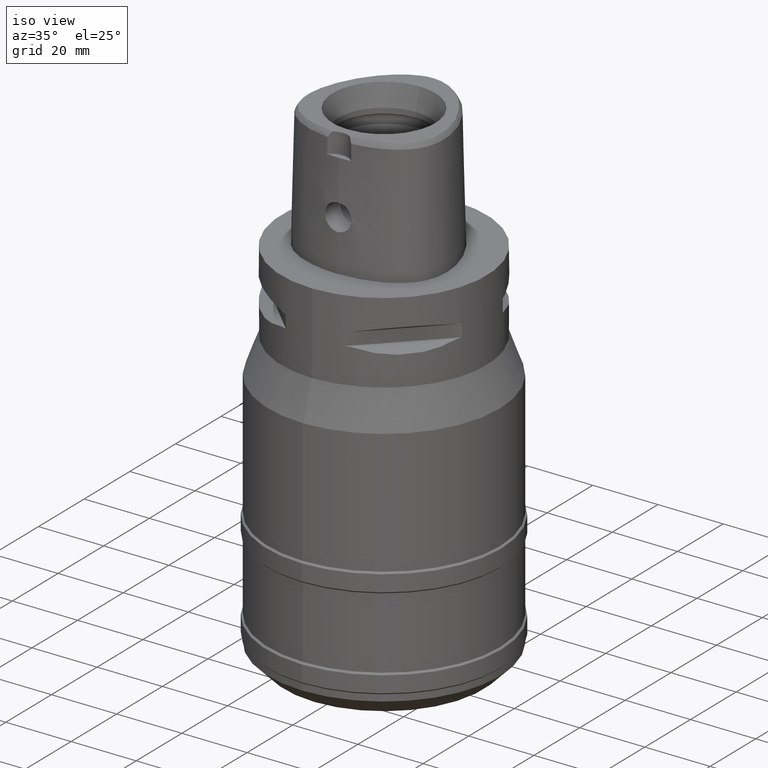
[diagram: clean part render]
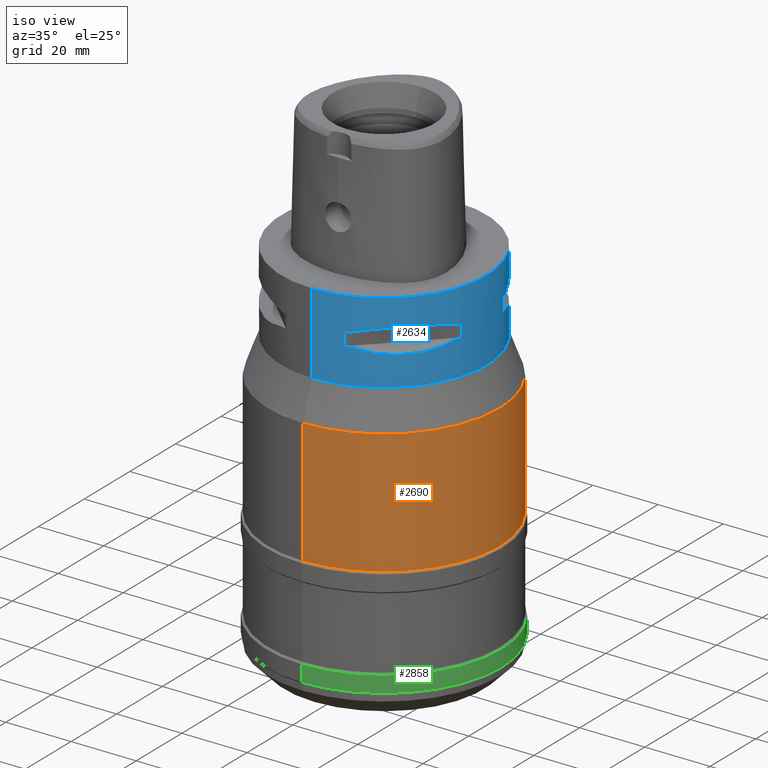
[diagram: same view with three faces highlighted in distinct colors, each labeled with its STEP entity id]
A machine part, iso view with three faces highlighted in distinct colors.
Their STEP definitions:

[orange] entity #2690 — the highlighted cylindrical surface (partial cylindrical patch) has radius 35.5 mm, axis along (0, 0, -1).
#549=CARTESIAN_POINT('',(0.E0,0.E0,-3.581390967782E1));
#550=DIRECTION('',(0.E0,0.E0,-1.E0));
#551=DIRECTION('',(0.E0,1.E0,0.E0));
#552=AXIS2_PLACEMENT_3D('',#549,#550,#551);
#588=DIRECTION('',(0.E0,0.E0,-1.E0));
#589=VECTOR('',#588,3.818609032218E1);
#590=CARTESIAN_POINT('',(0.E0,-3.55E1,-3.581390967782E1));
#591=LINE('',#590,#589);
#595=DIRECTION('',(0.E0,0.E0,-1.E0));
#596=VECTOR('',#595,3.818609032218E1);
#597=CARTESIAN_POINT('',(0.E0,3.55E1,-3.581390967782E1));
#598=LINE('',#597,#596);
#617=CARTESIAN_POINT('',(0.E0,0.E0,-7.4E1));
#618=DIRECTION('',(0.E0,0.E0,1.E0));
#619=DIRECTION('',(0.E0,-1.E0,0.E0));
#620=AXIS2_PLACEMENT_3D('',#617,#618,#619);
#1740=CARTESIAN_POINT('',(0.E0,3.55E1,-3.581390967782E1));
#1741=VERTEX_POINT('',#1740);
#1742=CARTESIAN_POINT('',(0.E0,-3.55E1,-3.581390967782E1));
#1743=VERTEX_POINT('',#1742);
#1744=CARTESIAN_POINT('',(0.E0,3.55E1,-7.4E1));
#1745=VERTEX_POINT('',#1744);
#1746=CARTESIAN_POINT('',(0.E0,-3.55E1,-7.4E1));
#1747=VERTEX_POINT('',#1746);
#2678=CARTESIAN_POINT('',(0.E0,1.295063990098E-14,5.75E0));
#2679=DIRECTION('',(0.E0,0.E0,-1.E0));
#2680=DIRECTION('',(0.E0,-1.E0,0.E0));
#2681=AXIS2_PLACEMENT_3D('',#2678,#2679,#2680);
#2682=CYLINDRICAL_SURFACE('',#2681,3.55E1);
#2683=ORIENTED_EDGE('',*,*,#2668,.T.);
#2685=ORIENTED_EDGE('',*,*,#2684,.F.);
#2686=ORIENTED_EDGE('',*,*,#2671,.F.);
#2687=ORIENTED_EDGE('',*,*,#2642,.F.);
#2688=EDGE_LOOP('',(#2683,#2685,#2686,#2687));
#2689=FACE_OUTER_BOUND('',#2688,.F.);
#553=CIRCLE('',#552,3.55E1);
#621=CIRCLE('',#620,3.55E1);
#2642=EDGE_CURVE('',#1741,#1743,#553,.T.);
#2668=EDGE_CURVE('',#1741,#1745,#598,.T.);
#2671=EDGE_CURVE('',#1743,#1747,#591,.T.);
#2684=EDGE_CURVE('',#1747,#1745,#621,.T.);
#2690=ADVANCED_FACE('',(#2689),#2682,.T.);

[blue] entity #2634 — the highlighted cylindrical surface (partial cylindrical patch) has radius 31.5 mm, axis along (0, 0, -1).
#292=CARTESIAN_POINT('',(0.E0,1.295063990098E-14,0.E0));
#293=DIRECTION('',(0.E0,0.E0,-1.E0));
#294=DIRECTION('',(0.E0,1.E0,0.E0));
#295=AXIS2_PLACEMENT_3D('',#292,#293,#294);
#384=DIRECTION('',(0.E0,0.E0,-1.E0));
#385=VECTOR('',#384,2.4824E1);
#386=CARTESIAN_POINT('',(0.E0,-3.15E1,0.E0));
#387=LINE('',#386,#385);
#463=DIRECTION('',(0.E0,0.E0,-1.E0));
#464=VECTOR('',#463,2.4824E1);
#465=CARTESIAN_POINT('',(0.E0,3.15E1,0.E0));
#466=LINE('',#465,#464);
#470=CARTESIAN_POINT('',(2.971690375018E1,-1.044775724750E1,-9.949999999999E0));
#471=CARTESIAN_POINT('',(2.888151197365E1,-1.282388988809E1,-9.320995176198E0));
#472=CARTESIAN_POINT('',(2.674739463903E1,-1.711282138769E1,-8.441295977074E0));
#473=CARTESIAN_POINT('',(2.244574140438E1,-2.244574140438E1,-8.020283076294E0));
#474=CARTESIAN_POINT('',(1.711282138769E1,-2.674739463903E1,-8.441295977074E0));
#475=CARTESIAN_POINT('',(1.282388988809E1,-2.888151197365E1,-9.320995176198E0));
#476=CARTESIAN_POINT('',(1.044775724750E1,-2.971690375018E1,-9.949999999999E0));
#481=DIRECTION('',(0.E0,0.E0,-1.E0));
#482=VECTOR('',#481,4.1E0);
#483=CARTESIAN_POINT('',(8.981198972018E0,-3.019251670572E1,-9.95E0));
#484=LINE('',#483,#482);
#488=CARTESIAN_POINT('',(1.044775724750E1,-2.971690375018E1,-1.405E1));
#489=CARTESIAN_POINT('',(1.282388988809E1,-2.888151197365E1,-1.467900482380E1));
#490=CARTESIAN_POINT('',(1.711282138769E1,-2.674739463903E1,-1.555870402292E1));
#491=CARTESIAN_POINT('',(2.244574140438E1,-2.244574140438E1,-1.597971692370E1));
#492=CARTESIAN_POINT('',(2.674739463903E1,-1.711282138769E1,-1.555870402292E1));
#493=CARTESIAN_POINT('',(2.888151197365E1,-1.282388988809E1,-1.467900482380E1));
#494=CARTESIAN_POINT('',(2.971690375018E1,-1.044775724750E1,-1.405E1));
#499=DIRECTION('',(0.E0,0.E0,1.E0));
#500=VECTOR('',#499,4.1E0);
#501=CARTESIAN_POINT('',(3.019251670572E1,-8.981198972018E0,-1.405E1));
#502=LINE('',#501,#500);
#506=CARTESIAN_POINT('',(1.044775724750E1,2.971690375018E1,-9.949999999999E0));
#507=CARTESIAN_POINT('',(1.282388988809E1,2.888151197365E1,-9.320995176198E0));
#508=CARTESIAN_POINT('',(1.711282138769E1,2.674739463903E1,-8.441295977074E0));
#509=CARTESIAN_POINT('',(2.244574140438E1,2.244574140438E1,-8.020283076294E0));
#510=CARTESIAN_POINT('',(2.674739463903E1,1.711282138769E1,-8.441295977074E0));
#511=CARTESIAN_POINT('',(2.888151197365E1,1.282388988809E1,-9.320995176198E0));
#512=CARTESIAN_POINT('',(2.971690375018E1,1.044775724750E1,-9.949999999999E0));
#517=DIRECTION('',(0.E0,0.E0,-1.E0));
#518=VECTOR('',#517,4.1E0);
#519=CARTESIAN_POINT('',(3.019251670572E1,8.981198972018E0,-9.95E0));
#520=LINE('',#519,#518);
#524=CARTESIAN_POINT('',(2.971690375018E1,1.044775724750E1,-1.405E1));
#525=CARTESIAN_POINT('',(2.888151197365E1,1.282388988809E1,-1.467900482380E1));
#526=CARTESIAN_POINT('',(2.674739463903E1,1.711282138769E1,-1.555870402292E1));
#527=CARTESIAN_POINT('',(2.244574140438E1,2.244574140438E1,-1.597971692370E1));
#528=CARTESIAN_POINT('',(1.711282138769E1,2.674739463903E1,-1.555870402292E1));
#529=CARTESIAN_POINT('',(1.282388988809E1,2.888151197365E1,-1.467900482380E1));
#530=CARTESIAN_POINT('',(1.044775724750E1,2.971690375018E1,-1.405E1));
#535=DIRECTION('',(0.E0,0.E0,1.E0));
#536=VECTOR('',#535,4.1E0);
#537=CARTESIAN_POINT('',(8.981198972018E0,3.019251670572E1,-1.405E1));
#538=LINE('',#537,#536);
#557=CARTESIAN_POINT('',(0.E0,0.E0,-2.4824E1));
#558=DIRECTION('',(0.E0,0.E0,1.E0));
#559=DIRECTION('',(0.E0,-1.E0,0.E0));
#560=AXIS2_PLACEMENT_3D('',#557,#558,#559);
#1414=CARTESIAN_POINT('',(0.E0,1.295063990098E-14,-9.95E0));
#1415=DIRECTION('',(0.E0,0.E0,1.E0));
#1416=DIRECTION('',(9.433937698469E-1,-3.316748332541E-1,0.E0));
#1417=AXIS2_PLACEMENT_3D('',#1414,#1415,#1416);
#1422=CARTESIAN_POINT('',(0.E0,1.295063990098E-14,-9.95E0));
#1423=DIRECTION('',(0.E0,0.E0,1.E0));
#1424=DIRECTION('',(2.851174276832E-1,-9.584925938323E-1,0.E0));
#1425=AXIS2_PLACEMENT_3D('',#1422,#1423,#1424);
#1444=CARTESIAN_POINT('',(0.E0,1.295063990098E-14,-1.405E1));
#1445=DIRECTION('',(0.E0,0.E0,-1.E0));
#1446=DIRECTION('',(9.584925938323E-1,-2.851174276832E-1,0.E0));
#1447=AXIS2_PLACEMENT_3D('',#1444,#1445,#1446);
#1452=CARTESIAN_POINT('',(0.E0,1.295063990098E-14,-1.405E1));
#1453=DIRECTION('',(0.E0,0.E0,-1.E0));
#1454=DIRECTION('',(3.316748332541E-1,-9.433937698469E-1,0.E0));
#1455=AXIS2_PLACEMENT_3D('',#1452,#1453,#1454);
#1474=CARTESIAN_POINT('',(0.E0,1.295063990098E-14,-9.95E0));
#1475=DIRECTION('',(0.E0,0.E0,1.E0));
#1476=DIRECTION('',(3.316748332541E-1,9.433937698469E-1,0.E0));
#1477=AXIS2_PLACEMENT_3D('',#1474,#1475,#1476);
#1482=CARTESIAN_POINT('',(0.E0,1.295063990098E-14,-9.95E0));
#1483=DIRECTION('',(0.E0,0.E0,1.E0));
#1484=DIRECTION('',(9.584925938323E-1,2.851174276832E-1,0.E0));
#1485=AXIS2_PLACEMENT_3D('',#1482,#1483,#1484);
#1504=CARTESIAN_POINT('',(0.E0,1.295063990098E-14,-1.405E1));
#1505=DIRECTION('',(0.E0,0.E0,-1.E0));
#1506=DIRECTION('',(2.851174276832E-1,9.584925938323E-1,0.E0));
#1507=AXIS2_PLACEMENT_3D('',#1504,#1505,#1506);
#1512=CARTESIAN_POINT('',(0.E0,1.295063990098E-14,-1.405E1));
#1513=DIRECTION('',(0.E0,0.E0,-1.E0));
#1514=DIRECTION('',(9.433937698469E-1,3.316748332541E-1,0.E0));
#1515=AXIS2_PLACEMENT_3D('',#1512,#1513,#1514);
#1680=CARTESIAN_POINT('',(0.E0,-3.15E1,0.E0));
#1681=CARTESIAN_POINT('',(0.E0,3.15E1,0.E0));
#1682=VERTEX_POINT('',#1680);
#1683=VERTEX_POINT('',#1681);
#1684=CARTESIAN_POINT('',(0.E0,3.15E1,-2.4824E1));
#1685=VERTEX_POINT('',#1684);
#1686=CARTESIAN_POINT('',(0.E0,-3.15E1,-2.4824E1));
#1687=VERTEX_POINT('',#1686);
#1714=VERTEX_POINT('',#470);
#1715=VERTEX_POINT('',#476);
#1716=CARTESIAN_POINT('',(8.981198972020E0,-3.019251670572E1,-9.95E0));
#1717=VERTEX_POINT('',#1716);
#1718=CARTESIAN_POINT('',(8.981198972018E0,-3.019251670572E1,-1.405E1));
#1719=VERTEX_POINT('',#1718);
#1720=CARTESIAN_POINT('',(1.044775724750E1,-2.971690375018E1,-1.405E1));
#1721=VERTEX_POINT('',#1720);
#1722=VERTEX_POINT('',#494);
#1723=CARTESIAN_POINT('',(3.019251670572E1,-8.981198972020E0,-1.405E1));
#1724=VERTEX_POINT('',#1723);
#1725=CARTESIAN_POINT('',(3.019251670572E1,-8.981198972018E0,-9.95E0));
#1726=VERTEX_POINT('',#1725);
#1727=VERTEX_POINT('',#506);
#1728=VERTEX_POINT('',#512);
#1729=CARTESIAN_POINT('',(3.019251670572E1,8.981198972020E0,-9.95E0));
#1730=VERTEX_POINT('',#1729);
#1731=CARTESIAN_POINT('',(3.019251670572E1,8.981198972018E0,-1.405E1));
#1732=VERTEX_POINT('',#1731);
#1733=CARTESIAN_POINT('',(2.971690375018E1,1.044775724750E1,-1.405E1));
#1734=VERTEX_POINT('',#1733);
#1735=VERTEX_POINT('',#530);
#1736=CARTESIAN_POINT('',(8.981198972020E0,3.019251670572E1,-1.405E1));
#1737=VERTEX_POINT('',#1736);
#1738=CARTESIAN_POINT('',(8.981198972018E0,3.019251670572E1,-9.95E0));
#1739=VERTEX_POINT('',#1738);
#2586=CARTESIAN_POINT('',(0.E0,1.295063990098E-14,5.75E0));
#2587=DIRECTION('',(0.E0,0.E0,-1.E0));
#2588=DIRECTION('',(0.E0,-1.E0,0.E0));
#2589=AXIS2_PLACEMENT_3D('',#2586,#2587,#2588);
#2590=CYLINDRICAL_SURFACE('',#2589,3.15E1);
#2591=ORIENTED_EDGE('',*,*,#2540,.T.);
#2593=ORIENTED_EDGE('',*,*,#2592,.F.);
#2594=ORIENTED_EDGE('',*,*,#2543,.F.);
#2595=ORIENTED_EDGE('',*,*,#2525,.F.);
#2596=EDGE_LOOP('',(#2591,#2593,#2594,#2595));
#2597=FACE_OUTER_BOUND('',#2596,.F.);
#2599=ORIENTED_EDGE('',*,*,#2598,.T.);
#2601=ORIENTED_EDGE('',*,*,#2600,.F.);
#2603=ORIENTED_EDGE('',*,*,#2602,.T.);
#2605=ORIENTED_EDGE('',*,*,#2604,.F.);
#2607=ORIENTED_EDGE('',*,*,#2606,.T.);
#2609=ORIENTED_EDGE('',*,*,#2608,.F.);
#2611=ORIENTED_EDGE('',*,*,#2610,.T.);
#2613=ORIENTED_EDGE('',*,*,#2612,.F.);
#2614=EDGE_LOOP('',(#2599,#2601,#2603,#2605,#2607,#2609,#2611,#2613));
#2615=FACE_BOUND('',#2614,.F.);
#2617=ORIENTED_EDGE('',*,*,#2616,.T.);
#2619=ORIENTED_EDGE('',*,*,#2618,.F.);
#2621=ORIENTED_EDGE('',*,*,#2620,.T.);
#2623=ORIENTED_EDGE('',*,*,#2622,.F.);
#2625=ORIENTED_EDGE('',*,*,#2624,.T.);
#2627=ORIENTED_EDGE('',*,*,#2626,.F.);
#2629=ORIENTED_EDGE('',*,*,#2628,.T.);
#2631=ORIENTED_EDGE('',*,*,#2630,.F.);
#2632=EDGE_LOOP('',(#2617,#2619,#2621,#2623,#2625,#2627,#2629,#2631));
#2633=FACE_BOUND('',#2632,.F.);
#296=CIRCLE('',#295,3.15E1);
#477=B_SPLINE_CURVE_WITH_KNOTS('',3,(#470,#471,#472,#473,#474,#475,#476),
.UNSPECIFIED.,.F.,.F.,(4,1,1,1,4),(0.E0,2.5E-1,5.E-1,7.5E-1,1.E0),
.UNSPECIFIED.);
#495=B_SPLINE_CURVE_WITH_KNOTS('',3,(#488,#489,#490,#491,#492,#493,#494),
.UNSPECIFIED.,.F.,.F.,(4,1,1,1,4),(0.E0,2.5E-1,5.E-1,7.5E-1,1.E0),
.UNSPECIFIED.);
#513=B_SPLINE_CURVE_WITH_KNOTS('',3,(#506,#507,#508,#509,#510,#511,#512),
.UNSPECIFIED.,.F.,.F.,(4,1,1,1,4),(0.E0,2.5E-1,5.E-1,7.5E-1,1.E0),
.UNSPECIFIED.);
#531=B_SPLINE_CURVE_WITH_KNOTS('',3,(#524,#525,#526,#527,#528,#529,#530),
.UNSPECIFIED.,.F.,.F.,(4,1,1,1,4),(0.E0,2.5E-1,5.E-1,7.5E-1,1.E0),
.UNSPECIFIED.);
#561=CIRCLE('',#560,3.15E1);
#1418=CIRCLE('',#1417,3.15E1);
#1426=CIRCLE('',#1425,3.15E1);
#1448=CIRCLE('',#1447,3.15E1);
#1456=CIRCLE('',#1455,3.15E1);
#1478=CIRCLE('',#1477,3.15E1);
#1486=CIRCLE('',#1485,3.15E1);
#1508=CIRCLE('',#1507,3.15E1);
#1516=CIRCLE('',#1515,3.15E1);
#2525=EDGE_CURVE('',#1683,#1682,#296,.T.);
#2540=EDGE_CURVE('',#1683,#1685,#466,.T.);
#2543=EDGE_CURVE('',#1682,#1687,#387,.T.);
#2592=EDGE_CURVE('',#1687,#1685,#561,.T.);
#2598=EDGE_CURVE('',#1714,#1715,#477,.T.);
#2600=EDGE_CURVE('',#1717,#1715,#1426,.T.);
#2602=EDGE_CURVE('',#1717,#1719,#484,.T.);
#2604=EDGE_CURVE('',#1721,#1719,#1456,.T.);
#2606=EDGE_CURVE('',#1721,#1722,#495,.T.);
#2608=EDGE_CURVE('',#1724,#1722,#1448,.T.);
#2610=EDGE_CURVE('',#1724,#1726,#502,.T.);
#2612=EDGE_CURVE('',#1714,#1726,#1418,.T.);
#2616=EDGE_CURVE('',#1727,#1728,#513,.T.);
#2618=EDGE_CURVE('',#1730,#1728,#1486,.T.);
#2620=EDGE_CURVE('',#1730,#1732,#520,.T.);
#2622=EDGE_CURVE('',#1734,#1732,#1516,.T.);
#2624=EDGE_CURVE('',#1734,#1735,#531,.T.);
#2626=EDGE_CURVE('',#1737,#1735,#1508,.T.);
#2628=EDGE_CURVE('',#1737,#1739,#538,.T.);
#2630=EDGE_CURVE('',#1727,#1739,#1478,.T.);
#2634=ADVANCED_FACE('',(#2597,#2615,#2633),#2590,.T.);

[green] entity #2858 — the highlighted cylindrical surface (partial cylindrical patch) has radius 36 mm, axis along (0, 0, -1).
#729=CARTESIAN_POINT('',(0.E0,0.E0,-1.025E2));
#730=DIRECTION('',(0.E0,0.E0,-1.E0));
#731=DIRECTION('',(0.E0,1.E0,0.E0));
#732=AXIS2_PLACEMENT_3D('',#729,#730,#731);
#768=DIRECTION('',(0.E0,0.E0,-1.E0));
#769=VECTOR('',#768,5.E0);
#770=CARTESIAN_POINT('',(0.E0,-3.6E1,-1.025E2));
#771=LINE('',#770,#769);
#775=DIRECTION('',(0.E0,0.E0,-1.E0));
#776=VECTOR('',#775,5.E0);
#777=CARTESIAN_POINT('',(0.E0,3.6E1,-1.025E2));
#778=LINE('',#777,#776);
#797=CARTESIAN_POINT('',(0.E0,0.E0,-1.075E2));
#798=DIRECTION('',(0.E0,0.E0,1.E0));
#799=DIRECTION('',(0.E0,-1.E0,0.E0));
#800=AXIS2_PLACEMENT_3D('',#797,#798,#799);
#1764=CARTESIAN_POINT('',(0.E0,3.6E1,-1.025E2));
#1765=VERTEX_POINT('',#1764);
#1766=CARTESIAN_POINT('',(0.E0,-3.6E1,-1.025E2));
#1767=VERTEX_POINT('',#1766);
#1768=CARTESIAN_POINT('',(0.E0,3.6E1,-1.075E2));
#1769=VERTEX_POINT('',#1768);
#1770=CARTESIAN_POINT('',(0.E0,-3.6E1,-1.075E2));
#1771=VERTEX_POINT('',#1770);
#2846=CARTESIAN_POINT('',(0.E0,1.295063990098E-14,5.75E0));
#2847=DIRECTION('',(0.E0,0.E0,-1.E0));
#2848=DIRECTION('',(0.E0,-1.E0,0.E0));
#2849=AXIS2_PLACEMENT_3D('',#2846,#2847,#2848);
#2850=CYLINDRICAL_SURFACE('',#2849,3.6E1);
#2851=ORIENTED_EDGE('',*,*,#2836,.T.);
#2853=ORIENTED_EDGE('',*,*,#2852,.F.);
#2854=ORIENTED_EDGE('',*,*,#2839,.F.);
#2855=ORIENTED_EDGE('',*,*,#2810,.F.);
#2856=EDGE_LOOP('',(#2851,#2853,#2854,#2855));
#2857=FACE_OUTER_BOUND('',#2856,.F.);
#733=CIRCLE('',#732,3.6E1);
#801=CIRCLE('',#800,3.6E1);
#2810=EDGE_CURVE('',#1765,#1767,#733,.T.);
#2836=EDGE_CURVE('',#1765,#1769,#778,.T.);
#2839=EDGE_CURVE('',#1767,#1771,#771,.T.);
#2852=EDGE_CURVE('',#1771,#1769,#801,.T.);
#2858=ADVANCED_FACE('',(#2857),#2850,.T.);